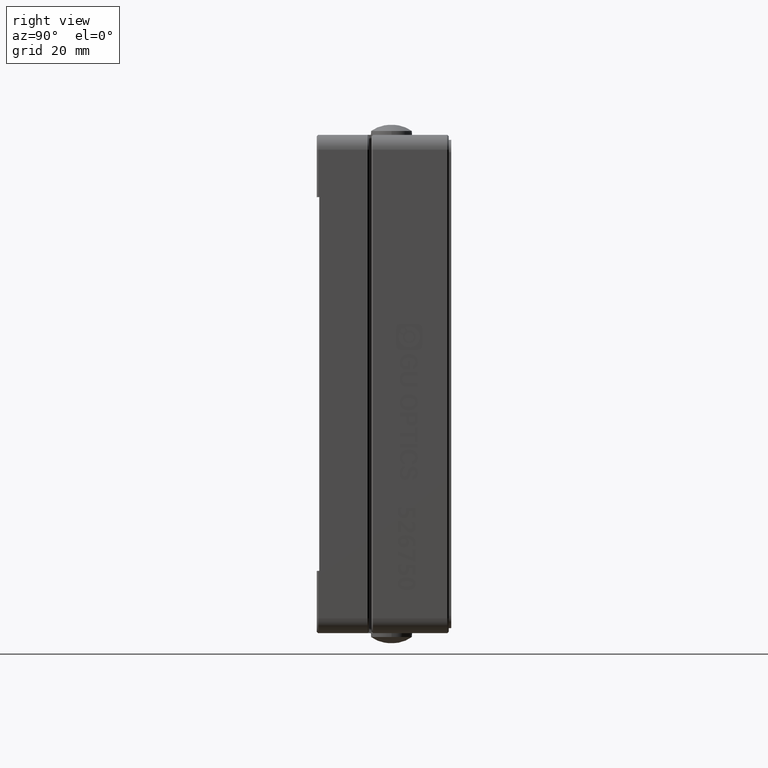
[diagram: clean part render]
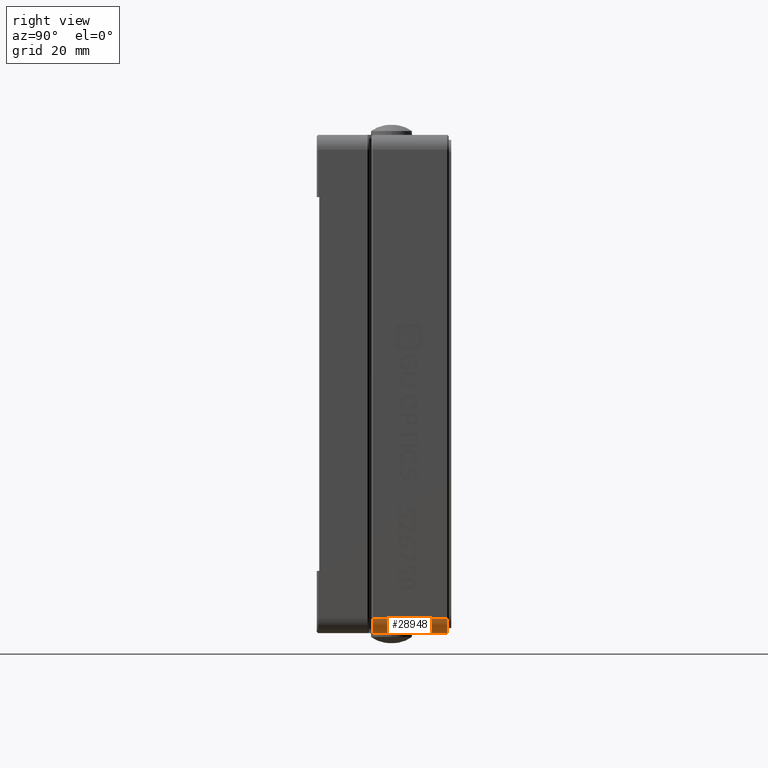
[diagram: same view with one face highlighted and labeled with its STEP entity id]
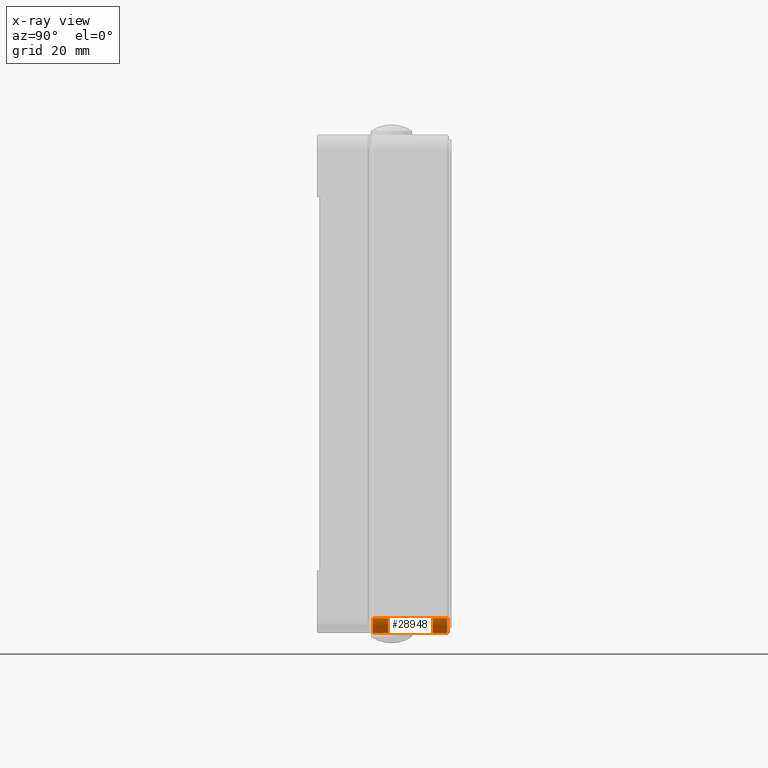
[diagram: x-ray of the same camera — body ghosted, the highlighted face saturated]
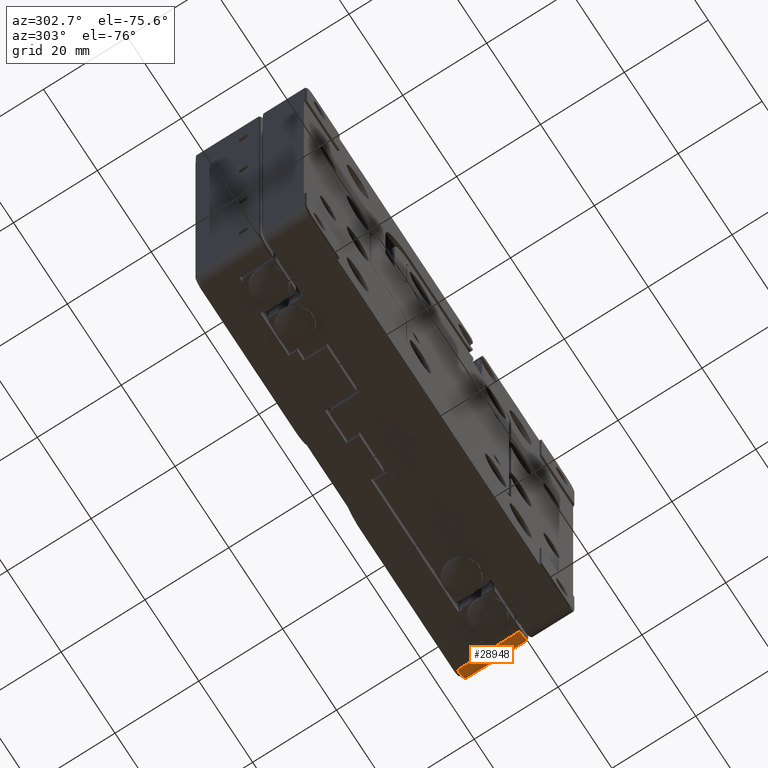
[diagram: same view with one face highlighted and labeled with its STEP entity id]
A machine part, right view. The second image highlights one B-rep face of the part: STEP entity #28948.
The next image is the same camera in x-ray: the body ghosted, the highlighted face saturated — about 0% of this face is hidden behind the body in this view.
A second angle (auxiliary view) of the same face is appended — the face is thin or edge-on in the first view.
In plain terms, the highlighted cylindrical surface (edge-blend (fillet) strip) has radius 3 mm, axis along (0, -1, 0).
Its self-contained STEP definition (entity closure, byte-faithful):
#1732 = VERTEX_POINT ( 'NONE', #48827 ) ;
#2166 = ORIENTED_EDGE ( 'NONE', *, *, #24440, .F. ) ;
#2324 = ORIENTED_EDGE ( 'NONE', *, *, #38835, .F. ) ;
#4546 = DIRECTION ( 'NONE',  ( 0.0000000000000000000, -1.000000000000000000, 0.0000000000000000000 ) ) ;
#5237 = CARTESIAN_POINT ( 'NONE',  ( 47.00000000000000000, 15.70000000000000300, -47.00000000000000000 ) ) ;
#7356 = CARTESIAN_POINT ( 'NONE',  ( 47.00000000000000000, 0.8000000000000020400, -47.00000000000000000 ) ) ;
#9510 = DIRECTION ( 'NONE',  ( 2.312964634635735200E-015, 0.0000000000000000000, -1.000000000000000000 ) ) ;
#11623 = DIRECTION ( 'NONE',  ( 0.0000000000000000000, 1.084202172485503400E-016, -1.000000000000000000 ) ) ;
#13541 = CIRCLE ( 'NONE', #14795, 3.000000000000002700 ) ;
#14795 = AXIS2_PLACEMENT_3D ( 'NONE', #7356, #37158, #11623 ) ;
#16908 = EDGE_CURVE ( 'NONE', #1732, #18513, #36139, .T. ) ;
#17602 = ORIENTED_EDGE ( 'NONE', *, *, #16908, .T. ) ;
#17779 = DIRECTION ( 'NONE',  ( 0.0000000000000000000, -1.000000000000000000, 0.0000000000000000000 ) ) ;
#18513 = VERTEX_POINT ( 'NONE', #29326 ) ;
#20001 = EDGE_CURVE ( 'NONE', #36516, #46052, #44720, .T. ) ;
#23236 = CARTESIAN_POINT ( 'NONE',  ( 46.99999998348999200, 8.249999999999998200, -50.00000000000000000 ) ) ;
#23416 = DIRECTION ( 'NONE',  ( 0.0000000000000000000, 1.000000000000000000, 0.0000000000000000000 ) ) ;
#24440 = EDGE_CURVE ( 'NONE', #1732, #46052, #52985, .T. ) ;
#24857 = VECTOR ( 'NONE', #4546, 1000.000000000000000 ) ;
#26238 = CARTESIAN_POINT ( 'NONE',  ( 46.99999998125833400, 15.70000000227812700, -49.99999999954437900 ) ) ;
#27575 = AXIS2_PLACEMENT_3D ( 'NONE', #47544, #17779, #51855 ) ;
#28948 = ADVANCED_FACE ( 'NONE', ( #42344 ), #29699, .T. ) ;
#29326 = CARTESIAN_POINT ( 'NONE',  ( 49.99999999999950300, 0.7999999979104912600, -46.99999999686777800 ) ) ;
#29699 = CYLINDRICAL_SURFACE ( 'NONE', #27575, 3.000000000000002700 ) ;
#29889 = CARTESIAN_POINT ( 'NONE',  ( 50.00000000000000000, 8.249999999999998200, -47.00000002680000200 ) ) ;
#33388 = VECTOR ( 'NONE', #23416, 1000.000000000000000 ) ;
#35050 = DIRECTION ( 'NONE',  ( -0.0000000000000000000, 1.000000000000000000, -0.0000000000000000000 ) ) ;
#36139 = LINE ( 'NONE', #29889, #24857 ) ;
#36516 = VERTEX_POINT ( 'NONE', #44785 ) ;
#37158 = DIRECTION ( 'NONE',  ( 0.0000000000000000000, -1.000000000000000000, 0.0000000000000000000 ) ) ;
#38835 = EDGE_CURVE ( 'NONE', #36516, #18513, #13541, .T. ) ;
#42344 = FACE_OUTER_BOUND ( 'NONE', #46984, .T. ) ;
#44720 = LINE ( 'NONE', #23236, #33388 ) ;
#44785 = CARTESIAN_POINT ( 'NONE',  ( 46.99999998266499500, 0.7999999999999948300, -50.00000000000000000 ) ) ;
#46052 = VERTEX_POINT ( 'NONE', #26238 ) ;
#46984 = EDGE_LOOP ( 'NONE', ( #2324, #48768, #2166, #17602 ) ) ;
#47544 = CARTESIAN_POINT ( 'NONE',  ( 47.00000000000000000, 15.70000000000000300, -47.00000000000000000 ) ) ;
#48768 = ORIENTED_EDGE ( 'NONE', *, *, #20001, .T. ) ;
#48827 = CARTESIAN_POINT ( 'NONE',  ( 49.99999999879249700, 15.70000000362250100, -47.00000002814249500 ) ) ;
#51855 = DIRECTION ( 'NONE',  ( 0.0000000000000000000, 0.0000000000000000000, -1.000000000000000000 ) ) ;
#52985 = CIRCLE ( 'NONE', #54890, 3.000000000000009800 ) ;
#54890 = AXIS2_PLACEMENT_3D ( 'NONE', #5237, #35050, #9510 ) ;